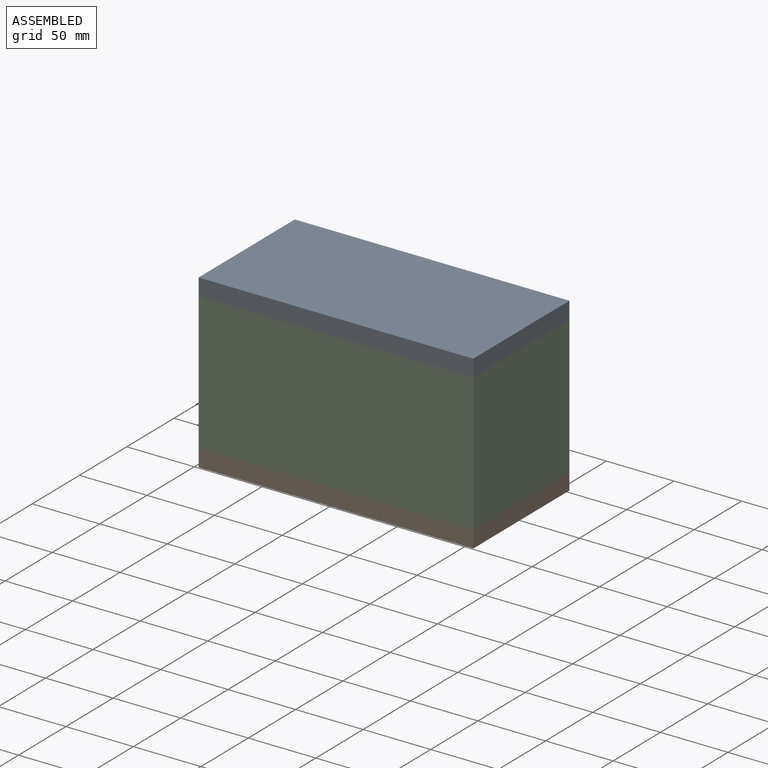
[diagram: assembled view]
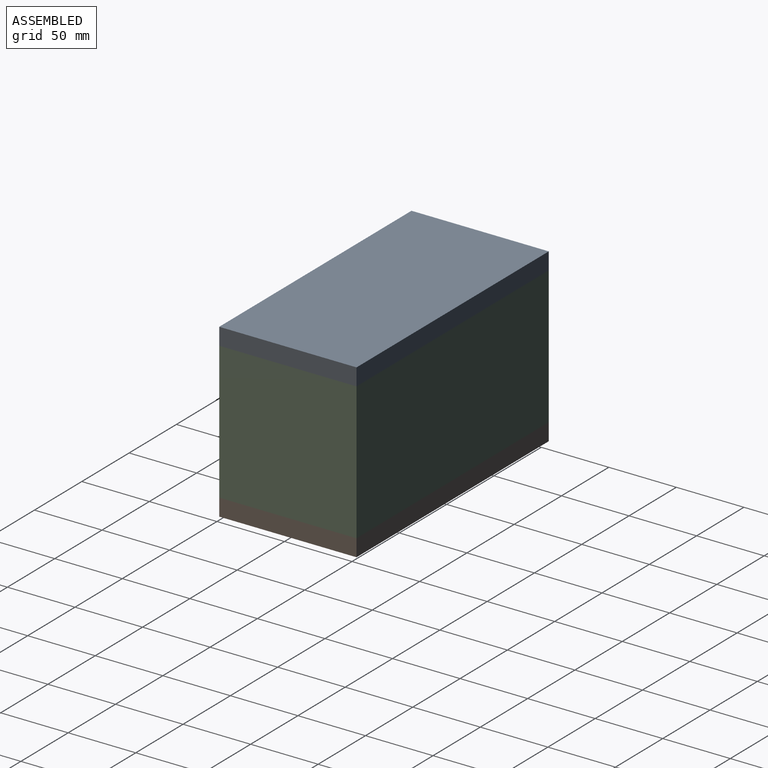
[diagram: assembled view, second angle]
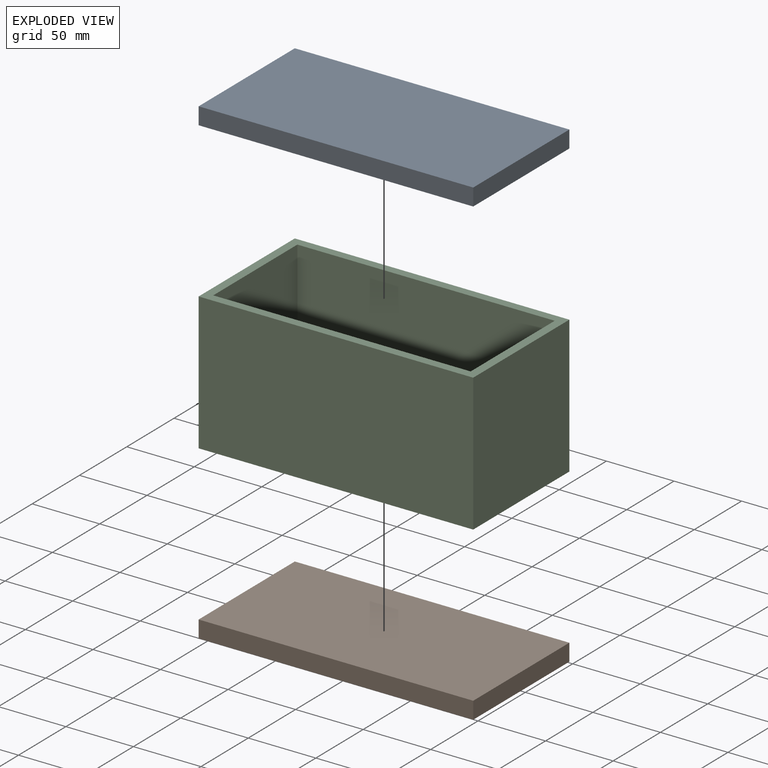
[diagram: exploded view]
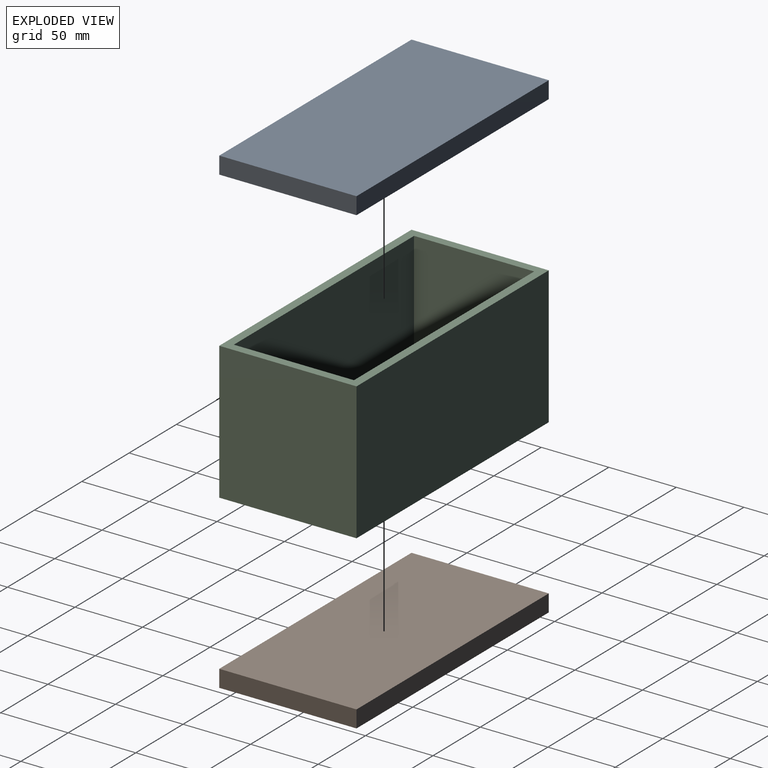
[diagram: exploded view, second angle]
ASSEMBLY  parts=3 mates=2
PART A: 6 faces, bbox 203.2x101.6x12.7 mm
  f0: plane 203.2x12.7mm, normal (0,1,0), area 2580.6mm2, adj f1,f3,f4,f5
  f1: plane 101.6x12.7mm, normal (-1,0,0), area 1290.3mm2, adj f0,f2,f4,f5
  f2: plane 203.2x12.7mm, normal (0,-1,0), area 2580.6mm2, adj f1,f3,f4,f5
  f3: plane 101.6x12.7mm, normal (1,0,0), area 1290.3mm2, adj f0,f2,f4,f5
  f4: plane 203.2x101.6mm, normal (0,0,1), area 20645.1mm2, adj f0,f1,f2,f3
  f5: plane 203.2x101.6mm, normal (0,0,-1), area 20645.1mm2, adj f0,f1,f2,f3
PART B: same geometry as A
PART C: 10 faces, bbox 203.2x101.6x101.6 mm
  f0: plane 203.2x101.6mm, normal (0,1,0), area 20645.1mm2, adj f1,f7,f8,f9
  f1: plane 101.6x101.6mm, normal (-1,0,0), area 10322.6mm2, adj f0,f2,f8,f9
  f2: plane 203.2x101.6mm, normal (0,-1,0), area 20645.1mm2, adj f1,f7,f8,f9
  f3: plane 190.5x101.6mm, normal (0,-1,0), area 19354.8mm2, adj f4,f6,f8,f9
  f4: plane 101.6x88.9mm, normal (-1,0,0), area 9032.2mm2, adj f3,f5,f8,f9
  f5: plane 190.5x101.6mm, normal (0,1,0), area 19354.8mm2, adj f4,f6,f8,f9
  f6: plane 101.6x88.9mm, normal (1,0,0), area 9032.2mm2, adj f3,f5,f8,f9
  f7: plane 101.6x101.6mm, normal (1,0,0), area 10322.6mm2, adj f0,f2,f8,f9
  f8: plane 203.2x101.6mm, normal (0,0,1), area 3709.7mm2, adj f0,f1,f2,f3,f4,f5,f6,f7
  f9: plane 203.2x101.6mm, normal (0,0,-1), area 3709.7mm2, adj f0,f1,f2,f3,f4,f5,f6,f7
PLACE A t=(-0.33,2.71,50.8)mm
PLACE B t=(-0.33,2.71,-63.5)mm
PLACE C at identity
MATE fastened A.f5 <-> C.f8  axis (0,0,-1) through (-101.71,-57.15,50.8)mm
MATE fastened B.f4 <-> C.f9  axis (0,0,1) through (-101.71,-57.15,-50.8)mm
